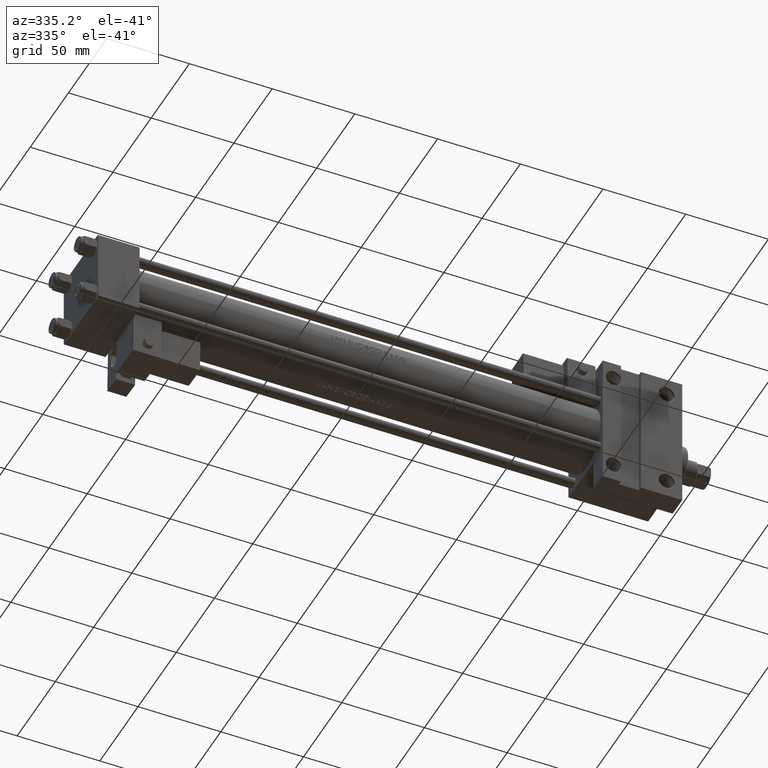
[diagram: clean part render]
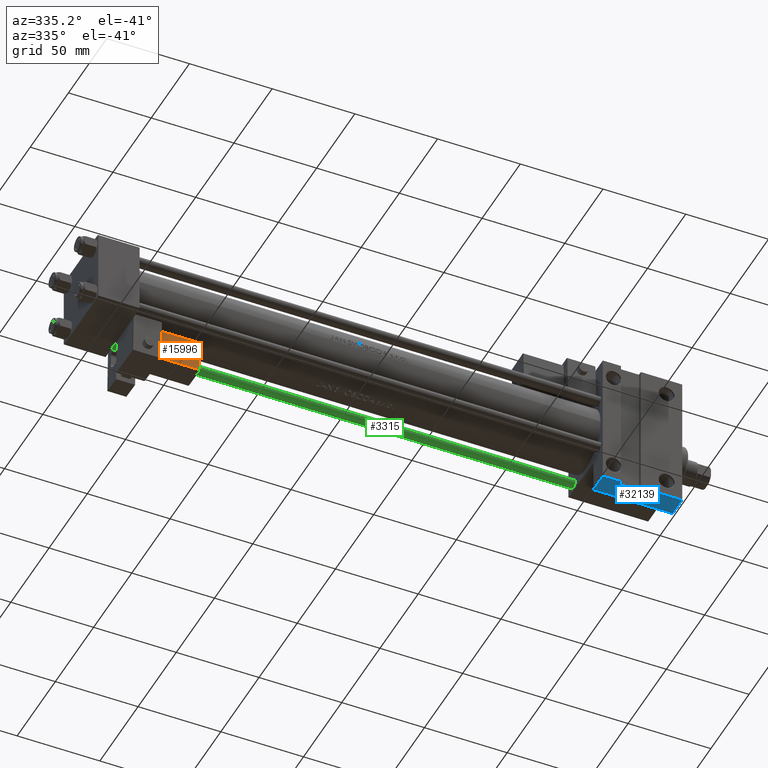
[diagram: same view with three faces highlighted in distinct colors, each labeled with its STEP entity id]
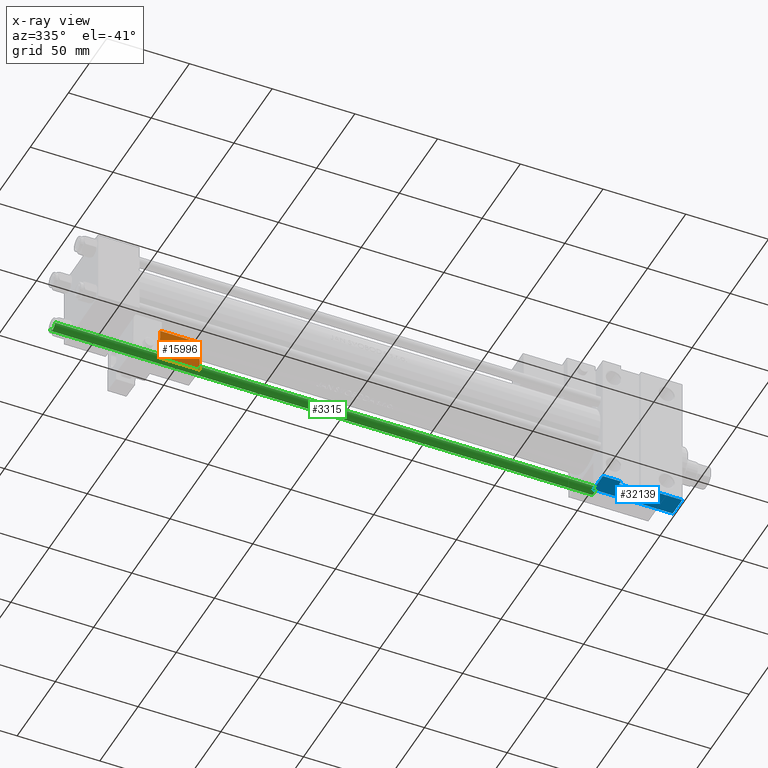
[diagram: x-ray of the same camera — body ghosted, the three highlighted faces saturated]
A machine part, auxiliary view with three faces highlighted in distinct colors.
The next image is the same camera in x-ray (body ghosted, the three faces saturated) — at least one of them is partly hidden behind the body in this view.
Their STEP definitions:

[orange] entity #15996 — the highlighted planar face has unit normal (0, 0.9994, 0.0353).
#5258 = VERTEX_POINT ( 'NONE', #24364 ) ;
#5494 = AXIS2_PLACEMENT_3D ( 'NONE', #14046, #32496, #25422 ) ;
#10211 = VECTOR ( 'NONE', #28997, 1000.000000000000000 ) ;
#13970 = EDGE_CURVE ( 'NONE', #28906, #5258, #47803, .T. ) ;
#14046 = CARTESIAN_POINT ( 'NONE',  ( 33.75000000000000000, -30.25000000000000000, 22.00000000000000355 ) ) ;
#14820 = EDGE_CURVE ( 'NONE', #5258, #31371, #19734, .T. ) ;
#15996 = ADVANCED_FACE ( 'NONE', ( #48454 ), #25170, .F. ) ;
#18009 = ORIENTED_EDGE ( 'NONE', *, *, #45675, .T. ) ;
#18602 = CARTESIAN_POINT ( 'NONE',  ( 9.250000000000005329, -30.25000000000000000, 2.500000000000003109 ) ) ;
#19734 = LINE ( 'NONE', #46060, #36914 ) ;
#21844 = ORIENTED_EDGE ( 'NONE', *, *, #14820, .T. ) ;
#22400 = CARTESIAN_POINT ( 'NONE',  ( 33.75000000000000000, -30.25000000000000000, 2.500000000000005773 ) ) ;
#22414 = ORIENTED_EDGE ( 'NONE', *, *, #49973, .T. ) ;
#23975 = VECTOR ( 'NONE', #35419, 1000.000000000000000 ) ;
#24364 = CARTESIAN_POINT ( 'NONE',  ( 33.24999999999999289, -30.25000000000000000, 21.50000000000000000 ) ) ;
#25170 = PLANE ( 'NONE',  #5494 ) ;
#25422 = DIRECTION ( 'NONE',  ( 0.000000000000000000, -0.000000000000000000, 1.000000000000000000 ) ) ;
#25707 = LINE ( 'NONE', #22400, #10211 ) ;
#26147 = VECTOR ( 'NONE', #30234, 1000.000000000000000 ) ;
#26932 = LINE ( 'NONE', #41359, #26147 ) ;
#28906 = VERTEX_POINT ( 'NONE', #41473 ) ;
#28997 = DIRECTION ( 'NONE',  ( 1.000000000000000000, -0.000000000000000000, 1.334402673828313339E-16 ) ) ;
#30234 = DIRECTION ( 'NONE',  ( 1.334402673828313339E-16, 0.000000000000000000, -1.000000000000000000 ) ) ;
#31371 = VERTEX_POINT ( 'NONE', #44578 ) ;
#32496 = DIRECTION ( 'NONE',  ( -0.000000000000000000, 1.000000000000000000, 0.000000000000000000 ) ) ;
#32689 = ORIENTED_EDGE ( 'NONE', *, *, #13970, .T. ) ;
#35419 = DIRECTION ( 'NONE',  ( -1.734723475976807341E-16, -0.000000000000000000, 1.000000000000000000 ) ) ;
#36914 = VECTOR ( 'NONE', #47046, 1000.000000000000000 ) ;
#40999 = EDGE_LOOP ( 'NONE', ( #18009, #22414, #32689, #21844 ) ) ;
#41359 = CARTESIAN_POINT ( 'NONE',  ( 9.250000000000005329, -30.25000000000000000, 2.000000000000001776 ) ) ;
#41473 = CARTESIAN_POINT ( 'NONE',  ( 33.24999999999999289, -30.25000000000000000, 2.500000000000006661 ) ) ;
#44578 = CARTESIAN_POINT ( 'NONE',  ( 9.250000000000001776, -30.25000000000000000, 21.50000000000000000 ) ) ;
#45622 = VERTEX_POINT ( 'NONE', #18602 ) ;
#45675 = EDGE_CURVE ( 'NONE', #31371, #45622, #26932, .T. ) ;
#46060 = CARTESIAN_POINT ( 'NONE',  ( 33.75000000000000000, -30.25000000000000000, 21.50000000000000000 ) ) ;
#47046 = DIRECTION ( 'NONE',  ( -1.000000000000000000, 0.000000000000000000, -1.334402673828313339E-16 ) ) ;
#47294 = CARTESIAN_POINT ( 'NONE',  ( 33.24999999999999289, -30.25000000000000000, 22.00000000000000355 ) ) ;
#47803 = LINE ( 'NONE', #47294, #23975 ) ;
#48454 = FACE_OUTER_BOUND ( 'NONE', #40999, .T. ) ;
#49973 = EDGE_CURVE ( 'NONE', #45622, #28906, #25707, .T. ) ;

[blue] entity #32139 — the highlighted planar face has unit normal (0, 0, -1).
#912 = CARTESIAN_POINT ( 'NONE',  ( 328.0000000000000568, 41.99999999999997868, -20.00000000000000000 ) ) ;
#1686 = FACE_OUTER_BOUND ( 'NONE', #45603, .T. ) ;
#2078 = CARTESIAN_POINT ( 'NONE',  ( 316.0000000000000568, 41.99999999999997868, -20.00000000000000000 ) ) ;
#2334 = LINE ( 'NONE', #2078, #17387 ) ;
#3020 = AXIS2_PLACEMENT_3D ( 'NONE', #5956, #39828, #24645 ) ;
#3358 = CARTESIAN_POINT ( 'NONE',  ( 353.0000000000000568, 41.99999999999996447, -9.999999999999998224 ) ) ;
#3739 = LINE ( 'NONE', #27211, #8652 ) ;
#4232 = ORIENTED_EDGE ( 'NONE', *, *, #34966, .T. ) ;
#5751 = VERTEX_POINT ( 'NONE', #15924 ) ;
#5956 = CARTESIAN_POINT ( 'NONE',  ( 305.0000000000000568, 41.99999999999997868, -9.999999999999998224 ) ) ;
#7532 = VECTOR ( 'NONE', #44019, 1000.000000000000000 ) ;
#8652 = VECTOR ( 'NONE', #34550, 1000.000000000000000 ) ;
#8797 = VECTOR ( 'NONE', #46888, 1000.000000000000000 ) ;
#10757 = EDGE_CURVE ( 'NONE', #19793, #13949, #48093, .T. ) ;
#12267 = CARTESIAN_POINT ( 'NONE',  ( 353.0000000000000568, 41.99999999999996447, -9.999999999999998224 ) ) ;
#12717 = CARTESIAN_POINT ( 'NONE',  ( 305.0000000000000568, 41.99999999999997868, -22.50000000000000000 ) ) ;
#13092 = ORIENTED_EDGE ( 'NONE', *, *, #43701, .F. ) ;
#13259 = EDGE_CURVE ( 'NONE', #40826, #36354, #29191, .T. ) ;
#13898 = CARTESIAN_POINT ( 'NONE',  ( 328.0000000000000568, 41.99999999999997868, -22.50000000000000000 ) ) ;
#13949 = VERTEX_POINT ( 'NONE', #24026 ) ;
#14267 = ORIENTED_EDGE ( 'NONE', *, *, #39307, .F. ) ;
#14471 = EDGE_CURVE ( 'NONE', #44480, #22250, #3739, .T. ) ;
#15789 = LINE ( 'NONE', #31454, #8797 ) ;
#15883 = CARTESIAN_POINT ( 'NONE',  ( 305.0000000000000568, 41.99999999999997868, -9.999999999999998224 ) ) ;
#15924 = CARTESIAN_POINT ( 'NONE',  ( 328.0000000000000568, 41.99999999999997868, -20.00000000000000000 ) ) ;
#16786 = ORIENTED_EDGE ( 'NONE', *, *, #27926, .F. ) ;
#16962 = CARTESIAN_POINT ( 'NONE',  ( 305.0000000000000568, 41.99999999999997868, -9.999999999999998224 ) ) ;
#17387 = VECTOR ( 'NONE', #28840, 1000.000000000000000 ) ;
#17570 = DIRECTION ( 'NONE',  ( 1.000000000000000000, -2.891205793294679312E-16, 0.000000000000000000 ) ) ;
#18992 = ORIENTED_EDGE ( 'NONE', *, *, #38201, .F. ) ;
#18999 = VECTOR ( 'NONE', #39748, 1000.000000000000000 ) ;
#19793 = VERTEX_POINT ( 'NONE', #13898 ) ;
#22250 = VERTEX_POINT ( 'NONE', #31578 ) ;
#23089 = ORIENTED_EDGE ( 'NONE', *, *, #14471, .T. ) ;
#24026 = CARTESIAN_POINT ( 'NONE',  ( 353.0000000000000568, 41.99999999999996447, -22.50000000000000000 ) ) ;
#24645 = DIRECTION ( 'NONE',  ( -1.000000000000000000, 2.891205793294679312E-16, 0.000000000000000000 ) ) ;
#27211 = CARTESIAN_POINT ( 'NONE',  ( 316.0000000000000568, 41.99999999999997868, -20.00000000000000000 ) ) ;
#27672 = DIRECTION ( 'NONE',  ( 0.000000000000000000, 0.000000000000000000, -1.000000000000000000 ) ) ;
#27926 = EDGE_CURVE ( 'NONE', #44480, #5751, #2334, .T. ) ;
#28691 = PLANE ( 'NONE',  #3020 ) ;
#28840 = DIRECTION ( 'NONE',  ( 1.000000000000000000, 0.000000000000000000, 0.000000000000000000 ) ) ;
#29191 = LINE ( 'NONE', #15883, #40885 ) ;
#30447 = VECTOR ( 'NONE', #27672, 1000.000000000000000 ) ;
#31454 = CARTESIAN_POINT ( 'NONE',  ( 305.0000000000000568, 41.99999999999997868, -22.50000000000000000 ) ) ;
#31578 = CARTESIAN_POINT ( 'NONE',  ( 316.0000000000000568, 41.99999999999997868, -22.50000000000000000 ) ) ;
#31958 = DIRECTION ( 'NONE',  ( -0.000000000000000000, -0.000000000000000000, -1.000000000000000000 ) ) ;
#32139 = ADVANCED_FACE ( 'NONE', ( #1686 ), #28691, .T. ) ;
#34550 = DIRECTION ( 'NONE',  ( -0.000000000000000000, -0.000000000000000000, -1.000000000000000000 ) ) ;
#34800 = ORIENTED_EDGE ( 'NONE', *, *, #10757, .F. ) ;
#34966 = EDGE_CURVE ( 'NONE', #36354, #13949, #35271, .T. ) ;
#35271 = LINE ( 'NONE', #12267, #30447 ) ;
#35686 = LINE ( 'NONE', #16962, #7532 ) ;
#35967 = VERTEX_POINT ( 'NONE', #45113 ) ;
#36354 = VERTEX_POINT ( 'NONE', #3358 ) ;
#37545 = CARTESIAN_POINT ( 'NONE',  ( 305.0000000000000568, 41.99999999999997868, -9.999999999999998224 ) ) ;
#38050 = ORIENTED_EDGE ( 'NONE', *, *, #13259, .T. ) ;
#38201 = EDGE_CURVE ( 'NONE', #35967, #22250, #15789, .T. ) ;
#39307 = EDGE_CURVE ( 'NONE', #5751, #19793, #39308, .T. ) ;
#39308 = LINE ( 'NONE', #912, #50019 ) ;
#39748 = DIRECTION ( 'NONE',  ( 1.000000000000000000, -2.891205793294679312E-16, 0.000000000000000000 ) ) ;
#39828 = DIRECTION ( 'NONE',  ( 2.891205793294679312E-16, 1.000000000000000000, 0.000000000000000000 ) ) ;
#40826 = VERTEX_POINT ( 'NONE', #37545 ) ;
#40885 = VECTOR ( 'NONE', #17570, 1000.000000000000000 ) ;
#43701 = EDGE_CURVE ( 'NONE', #40826, #35967, #35686, .T. ) ;
#44019 = DIRECTION ( 'NONE',  ( 0.000000000000000000, 0.000000000000000000, -1.000000000000000000 ) ) ;
#44480 = VERTEX_POINT ( 'NONE', #47956 ) ;
#45113 = CARTESIAN_POINT ( 'NONE',  ( 305.0000000000000568, 41.99999999999997868, -22.50000000000000000 ) ) ;
#45603 = EDGE_LOOP ( 'NONE', ( #14267, #16786, #23089, #18992, #13092, #38050, #4232, #34800 ) ) ;
#46888 = DIRECTION ( 'NONE',  ( 1.000000000000000000, -2.891205793294679312E-16, 0.000000000000000000 ) ) ;
#47956 = CARTESIAN_POINT ( 'NONE',  ( 316.0000000000000568, 41.99999999999997868, -20.00000000000000000 ) ) ;
#48093 = LINE ( 'NONE', #12717, #18999 ) ;
#50019 = VECTOR ( 'NONE', #31958, 1000.000000000000000 ) ;

[green] entity #3315 — the highlighted cylindrical surface (edge-blend (fillet) strip) has radius 3 mm, axis along (-1, -0, 0).
#3315 = ADVANCED_FACE ( 'NONE', ( #31404 ), #12202, .T. ) ;
#5634 = AXIS2_PLACEMENT_3D ( 'NONE', #23067, #38493, #43032 ) ;
#7920 = CARTESIAN_POINT ( 'NONE',  ( 0.000000000000000000, 0.000000000000000000, 327.5000000000000000 ) ) ;
#10413 = CARTESIAN_POINT ( 'NONE',  ( -3.000000000000000444, 0.000000000000000000, 0.5000000000000559552 ) ) ;
#10682 = EDGE_CURVE ( 'NONE', #10993, #40400, #14972, .T. ) ;
#10977 = VERTEX_POINT ( 'NONE', #10413 ) ;
#10993 = VERTEX_POINT ( 'NONE', #45295 ) ;
#11388 = LINE ( 'NONE', #11630, #13745 ) ;
#11630 = CARTESIAN_POINT ( 'NONE',  ( 3.000000000000000444, 3.673940397442060361E-16, 328.0000000000000000 ) ) ;
#11760 = AXIS2_PLACEMENT_3D ( 'NONE', #7920, #34960, #23330 ) ;
#12202 = CYLINDRICAL_SURFACE ( 'NONE', #5634, 3.000000000000000444 ) ;
#12666 = AXIS2_PLACEMENT_3D ( 'NONE', #48656, #25640, #29419 ) ;
#13745 = VECTOR ( 'NONE', #22993, 1000.000000000000000 ) ;
#14752 = CARTESIAN_POINT ( 'NONE',  ( -3.000000000000000444, 0.000000000000000000, 328.0000000000000000 ) ) ;
#14972 = CIRCLE ( 'NONE', #11760, 3.000000000000000444 ) ;
#15244 = LINE ( 'NONE', #14752, #20514 ) ;
#18196 = ORIENTED_EDGE ( 'NONE', *, *, #33711, .T. ) ;
#20514 = VECTOR ( 'NONE', #30407, 1000.000000000000000 ) ;
#22993 = DIRECTION ( 'NONE',  ( -0.000000000000000000, -0.000000000000000000, -1.000000000000000000 ) ) ;
#23067 = CARTESIAN_POINT ( 'NONE',  ( 0.000000000000000000, 0.000000000000000000, 328.0000000000000000 ) ) ;
#23330 = DIRECTION ( 'NONE',  ( 1.000000000000000000, 0.000000000000000000, 0.000000000000000000 ) ) ;
#25245 = EDGE_CURVE ( 'NONE', #40400, #10977, #15244, .T. ) ;
#25640 = DIRECTION ( 'NONE',  ( -0.000000000000000000, -0.000000000000000000, 1.000000000000000000 ) ) ;
#26031 = CARTESIAN_POINT ( 'NONE',  ( -3.000000000000000444, 0.000000000000000000, 327.5000000000000000 ) ) ;
#28124 = ORIENTED_EDGE ( 'NONE', *, *, #25245, .T. ) ;
#29419 = DIRECTION ( 'NONE',  ( 1.000000000000000000, 0.000000000000000000, 0.000000000000000000 ) ) ;
#29762 = EDGE_LOOP ( 'NONE', ( #30448, #33617, #28124, #18196 ) ) ;
#30407 = DIRECTION ( 'NONE',  ( -0.000000000000000000, -0.000000000000000000, -1.000000000000000000 ) ) ;
#30448 = ORIENTED_EDGE ( 'NONE', *, *, #42130, .F. ) ;
#31404 = FACE_OUTER_BOUND ( 'NONE', #29762, .T. ) ;
#31987 = VERTEX_POINT ( 'NONE', #48514 ) ;
#33617 = ORIENTED_EDGE ( 'NONE', *, *, #10682, .T. ) ;
#33711 = EDGE_CURVE ( 'NONE', #10977, #31987, #38453, .T. ) ;
#34960 = DIRECTION ( 'NONE',  ( 0.000000000000000000, 0.000000000000000000, -1.000000000000000000 ) ) ;
#38453 = CIRCLE ( 'NONE', #12666, 3.000000000000000444 ) ;
#38493 = DIRECTION ( 'NONE',  ( -0.000000000000000000, -0.000000000000000000, -1.000000000000000000 ) ) ;
#40400 = VERTEX_POINT ( 'NONE', #26031 ) ;
#42130 = EDGE_CURVE ( 'NONE', #10993, #31987, #11388, .T. ) ;
#43032 = DIRECTION ( 'NONE',  ( -1.000000000000000000, 0.000000000000000000, 0.000000000000000000 ) ) ;
#45295 = CARTESIAN_POINT ( 'NONE',  ( 3.000000000000000444, 3.673940397442060361E-16, 327.5000000000000000 ) ) ;
#48514 = CARTESIAN_POINT ( 'NONE',  ( 3.000000000000000444, 3.673940397442060361E-16, 0.5000000000000559552 ) ) ;
#48656 = CARTESIAN_POINT ( 'NONE',  ( 0.000000000000000000, 0.000000000000000000, 0.5000000000000559552 ) ) ;